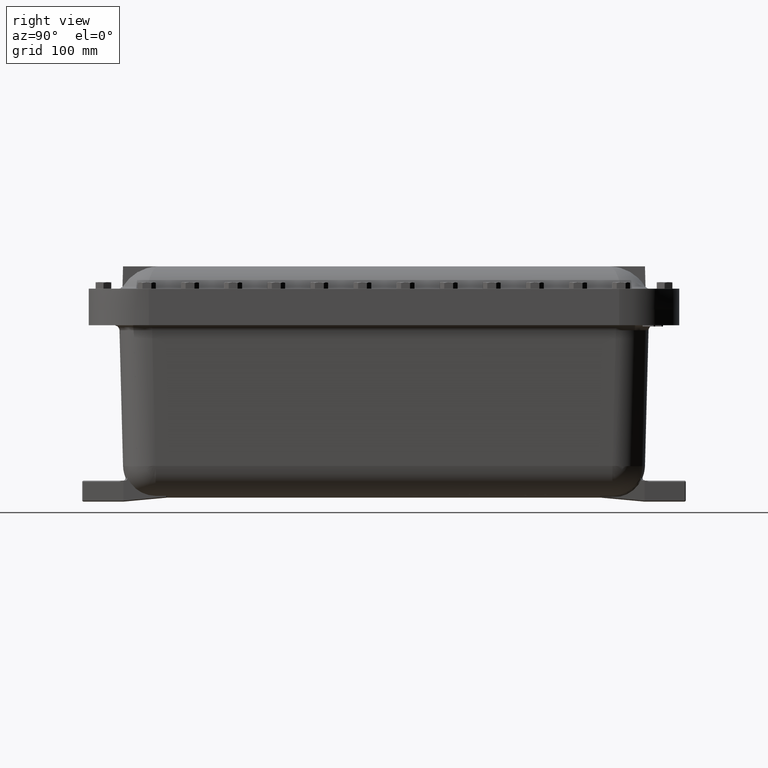
[diagram: clean part render]
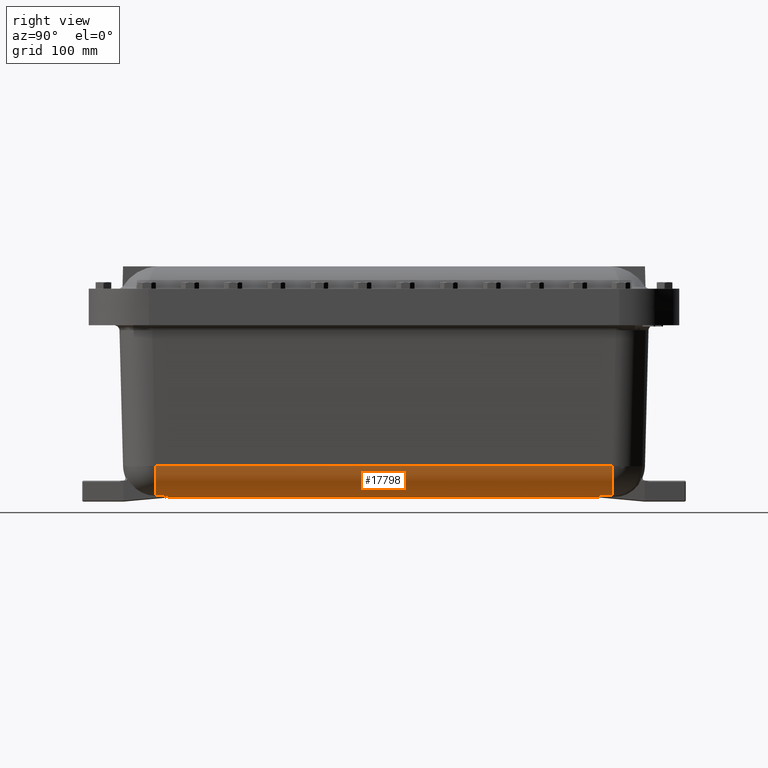
[diagram: same view with one face highlighted and labeled with its STEP entity id]
A machine part, right view. The second image highlights one B-rep face of the part: STEP entity #17798.
In plain terms, the highlighted cylindrical surface (edge-blend (fillet) strip) has radius 39.6875 mm, axis along (0, -1, 0).
Its self-contained STEP definition (entity closure, byte-faithful):
#203 = CARTESIAN_POINT ( 'NONE',  ( 10.29001692197456200, -5.361650166394818800, -8.937248816488160900 ) ) ;
#300 = CARTESIAN_POINT ( 'NONE',  ( 10.41091630549594900, -5.504103657496034300, -8.887988627914422700 ) ) ;
#924 = VECTOR ( 'NONE', #26434, 39.37007874015748100 ) ;
#1031 = CARTESIAN_POINT ( 'NONE',  ( -10.37709533229159600, -5.272931236109166700, -8.960758842838998800 ) ) ;
#1239 = DIRECTION ( 'NONE',  ( 0.0000000000000000000, 0.0000000000000000000, -1.000000000000000000 ) ) ;
#1304 = EDGE_CURVE ( 'NONE', #29025, #19054, #24633, .T. ) ;
#1338 = CARTESIAN_POINT ( 'NONE',  ( 10.36085580598931200, -5.101424483965397300, -8.990189405221141100 ) ) ;
#1356 = EDGE_CURVE ( 'NONE', #5006, #25724, #1631, .T. ) ;
#1624 = CARTESIAN_POINT ( 'NONE',  ( -10.40543167597383000, -5.429284719356038700, -8.915761112947960100 ) ) ;
#1631 = B_SPLINE_CURVE_WITH_KNOTS ( 'NONE', 3,
 ( #26054, #3476, #12466, #12552, #28309, #14817, #1338, #17093, #3568, #19325, #5834, #21603 ),
 .UNSPECIFIED., .F., .F.,
 ( 4, 2, 2, 2, 2, 4 ),
 ( 0.0000000000000000000, 0.001385781347999420700, 0.002771562695998841400, 0.005543125391997559700, 0.008314688087996277600, 0.01108625078399499600 ),
 .UNSPECIFIED. ) ;
#2492 = CARTESIAN_POINT ( 'NONE',  ( 10.29114362243611700, -5.392064922967612100, -8.928016527318938200 ) ) ;
#2586 = CARTESIAN_POINT ( 'NONE',  ( 10.43201303448690200, -5.505822155975402600, -8.887296949790451700 ) ) ;
#3013 = EDGE_CURVE ( 'NONE', #5006, #6031, #16939, .T. ) ;
#3240 = AXIS2_PLACEMENT_3D ( 'NONE', #28216, #14711, #1239 ) ;
#3241 = ORIENTED_EDGE ( 'NONE', *, *, #1304, .F. ) ;
#3283 = CARTESIAN_POINT ( 'NONE',  ( -10.38748216998110700, -5.168863537305435700, -8.980960517647792700 ) ) ;
#3476 = CARTESIAN_POINT ( 'NONE',  ( 10.39272711507939600, -4.941455234863738600, -8.999999999999998200 ) ) ;
#3568 = CARTESIAN_POINT ( 'NONE',  ( 10.33107051540961800, -5.204838867395361400, -8.974797771622874600 ) ) ;
#3722 = AXIS2_PLACEMENT_3D ( 'NONE', #5047, #20798, #7310 ) ;
#3866 = CARTESIAN_POINT ( 'NONE',  ( -10.38713530460376300, -5.412889677351109300, -8.921281892654109300 ) ) ;
#4724 = CARTESIAN_POINT ( 'NONE',  ( 10.29956450203506300, -5.421196163373300800, -8.918531867072228900 ) ) ;
#5006 = VERTEX_POINT ( 'NONE', #7647 ) ;
#5047 = CARTESIAN_POINT ( 'NONE',  ( -10.37500000000000000, -4.923160114669893300, -7.437499999999999100 ) ) ;
#5069 = DIRECTION ( 'NONE',  ( 0.0000000000000000000, 0.0000000000000000000, 1.000000000000000000 ) ) ;
#5134 = ORIENTED_EDGE ( 'NONE', *, *, #5344, .F. ) ;
#5145 = CARTESIAN_POINT ( 'NONE',  ( 10.43201303448690200, -5.505822155975402600, -8.887296949790451700 ) ) ;
#5344 = EDGE_CURVE ( 'NONE', #18502, #11908, #5858, .T. ) ;
#5536 = CARTESIAN_POINT ( 'NONE',  ( -10.40119199810038900, -5.064353296851564300, -8.994004928439912000 ) ) ;
#5635 = VECTOR ( 'NONE', #28959, 39.37007874015748100 ) ;
#5834 = CARTESIAN_POINT ( 'NONE',  ( 10.30239882575324700, -5.307410292922853000, -8.952429747976703200 ) ) ;
#5858 = LINE ( 'NONE', #24563, #29144 ) ;
#5930 = CARTESIAN_POINT ( 'NONE',  ( -10.43750000000000200, -5.437499999999905000, -8.912918832860253100 ) ) ;
#6031 = VERTEX_POINT ( 'NONE', #20969 ) ;
#6134 = CARTESIAN_POINT ( 'NONE',  ( -10.37809236375734500, -5.394825134729231300, -8.927115232426961800 ) ) ;
#6778 = CIRCLE ( 'NONE', #3722, 1.562499999999999600 ) ;
#6794 = CIRCLE ( 'NONE', #7013, 1.562499999999999600 ) ;
#6805 = CARTESIAN_POINT ( 'NONE',  ( -10.92316011466990000, -4.923160114669893300, -7.437499999999999100 ) ) ;
#6898 = CARTESIAN_POINT ( 'NONE',  ( 10.29381355921939800, -5.341530378864350200, -8.942947631781942500 ) ) ;
#6999 = CARTESIAN_POINT ( 'NONE',  ( 10.31459263110840800, -5.447383169046125000, -8.909459371604871300 ) ) ;
#7013 = AXIS2_PLACEMENT_3D ( 'NONE', #6805, #22575, #9078 ) ;
#7255 = EDGE_LOOP ( 'NONE', ( #14554, #19538, #26141, #13093, #3241, #24476, #19580, #5134, #12972, #19357, #27814 ) ) ;
#7310 = DIRECTION ( 'NONE',  ( 0.0000000000000000000, 1.139945530796224000E-013, 1.000000000000000000 ) ) ;
#7359 = CARTESIAN_POINT ( 'NONE',  ( 10.92316011466989400, -5.514771408683298400, -8.883668153015333900 ) ) ;
#7647 = CARTESIAN_POINT ( 'NONE',  ( 10.39272711507939700, -4.923160114669893300, -9.000000000000000000 ) ) ;
#7833 = CARTESIAN_POINT ( 'NONE',  ( -10.41203257096389500, -4.958876770218859400, -9.000000000000000000 ) ) ;
#8066 = B_SPLINE_CURVE_WITH_KNOTS ( 'NONE', 3,
 ( #18350, #20611, #11681, #27425 ),
 .UNSPECIFIED., .F., .F.,
 ( 4, 4 ),
 ( 0.0000000000000000000, 0.01247783751188180600 ),
 .UNSPECIFIED. ) ;
#8409 = CARTESIAN_POINT ( 'NONE',  ( -10.37538944145991900, -5.383041114422948900, -8.930795937044161200 ) ) ;
#9078 = DIRECTION ( 'NONE',  ( 0.0000000000000000000, 0.0000000000000000000, -1.000000000000000000 ) ) ;
#9265 = CARTESIAN_POINT ( 'NONE',  ( 10.33566325492795100, -5.469893921891066500, -8.901238963617334600 ) ) ;
#10067 = CARTESIAN_POINT ( 'NONE',  ( -10.92316011466990000, -6.485124684944201700, -7.478401481731051300 ) ) ;
#10602 = CARTESIAN_POINT ( 'NONE',  ( -10.42911097188061800, -5.437074340593825100, -8.913067413773429600 ) ) ;
#10688 = CARTESIAN_POINT ( 'NONE',  ( -12.68750000000000400, -6.485124684944201700, -7.478401481731049600 ) ) ;
#10695 = CARTESIAN_POINT ( 'NONE',  ( -10.37500000000000000, -5.374999999999905000, -8.933242948512530600 ) ) ;
#11505 = CARTESIAN_POINT ( 'NONE',  ( -10.37500000000000000, -5.374999999999905000, -8.933242948512530600 ) ) ;
#11532 = CARTESIAN_POINT ( 'NONE',  ( 10.36136526450555600, -5.487410019243856900, -8.894568833730392800 ) ) ;
#11610 = CARTESIAN_POINT ( 'NONE',  ( 10.92316011466989400, -6.485124684944201700, -7.478401481731051300 ) ) ;
#11681 = CARTESIAN_POINT ( 'NONE',  ( 10.75940751706564800, -5.513849086098490600, -8.884045464918351300 ) ) ;
#11773 = DIRECTION ( 'NONE',  ( -1.000000000000000000, 0.0000000000000000000, 0.0000000000000000000 ) ) ;
#11908 = VERTEX_POINT ( 'NONE', #21355 ) ;
#12256 = CARTESIAN_POINT ( 'NONE',  ( -10.37500000000000000, -5.341615099001122900, -8.942924085129618600 ) ) ;
#12466 = CARTESIAN_POINT ( 'NONE',  ( 10.39126772882532500, -4.959586581486756400, -8.999679290442577100 ) ) ;
#12552 = CARTESIAN_POINT ( 'NONE',  ( 10.38623110031781100, -4.995607617682137100, -8.998423567084474300 ) ) ;
#12737 = FACE_OUTER_BOUND ( 'NONE', #7255, .T. ) ;
#12842 = CARTESIAN_POINT ( 'NONE',  ( -10.43326656759217600, -5.437499999999903200, -8.912918832860253100 ) ) ;
#12972 = ORIENTED_EDGE ( 'NONE', *, *, #13978, .T. ) ;
#13093 = ORIENTED_EDGE ( 'NONE', *, *, #13707, .T. ) ;
#13560 = VERTEX_POINT ( 'NONE', #17778 ) ;
#13682 = CARTESIAN_POINT ( 'NONE',  ( 10.29129860691059900, -5.351525454564882300, -8.940169957970383100 ) ) ;
#13707 = EDGE_CURVE ( 'NONE', #15333, #19054, #8066, .T. ) ;
#13781 = CARTESIAN_POINT ( 'NONE',  ( 10.39045607279803600, -5.499400143754025200, -8.889863621322694700 ) ) ;
#13953 = AXIS2_PLACEMENT_3D ( 'NONE', #18551, #11773, #5069 ) ;
#13978 = EDGE_CURVE ( 'NONE', #18502, #18950, #28470, .T. ) ;
#14097 = CARTESIAN_POINT ( 'NONE',  ( -10.43750000000000200, -5.437499999999905000, -8.912918832860253100 ) ) ;
#14554 = ORIENTED_EDGE ( 'NONE', *, *, #3013, .F. ) ;
#14711 = DIRECTION ( 'NONE',  ( 1.000000000000000000, 0.0000000000000000000, 0.0000000000000000000 ) ) ;
#14817 = CARTESIAN_POINT ( 'NONE',  ( 10.37064735213919800, -5.066667449893341100, -8.993800915318690400 ) ) ;
#15098 = CARTESIAN_POINT ( 'NONE',  ( -10.41689730142322500, -5.434152500806802300, -8.914082533145645500 ) ) ;
#15333 = VERTEX_POINT ( 'NONE', #5145 ) ;
#15461 = CARTESIAN_POINT ( 'NONE',  ( 0.0000000000000000000, -4.923160114669893300, -9.000000000000000000 ) ) ;
#15972 = CARTESIAN_POINT ( 'NONE',  ( 10.28994029772164400, -5.382085832099869900, -8.931122182448005400 ) ) ;
#16066 = CARTESIAN_POINT ( 'NONE',  ( 10.42135657673396100, -5.505468709061935000, -8.887438997337264700 ) ) ;
#16790 = CARTESIAN_POINT ( 'NONE',  ( -10.38331269559864200, -5.203643398267431900, -8.975026086706314700 ) ) ;
#16939 = LINE ( 'NONE', #15461, #5635 ) ;
#17093 = CARTESIAN_POINT ( 'NONE',  ( 10.34112599485899000, -5.170526163198681000, -8.980689104575830600 ) ) ;
#17220 = EDGE_CURVE ( 'NONE', #18950, #13560, #6778, .T. ) ;
#17374 = CARTESIAN_POINT ( 'NONE',  ( -10.39849353847231800, -5.424504809374587600, -8.917397714919381700 ) ) ;
#17479 = CARTESIAN_POINT ( 'NONE',  ( 10.29381355921939800, -5.341530378864350200, -8.942947631781942500 ) ) ;
#17482 = B_SPLINE_CURVE_WITH_KNOTS ( 'NONE', 3,
 ( #12256, #25765, #1031, #16790, #3283, #19041, #5536, #21299, #7833, #23576 ),
 .UNSPECIFIED., .F., .F.,
 ( 4, 2, 2, 2, 4 ),
 ( 0.0000000000000000000, 0.002703188640501020300, 0.005406377281002040600, 0.008109565921503060500, 0.01081275456200408100 ),
 .UNSPECIFIED. ) ;
#17778 = CARTESIAN_POINT ( 'NONE',  ( -10.37500000000000000, -5.341615099001122900, -8.942924085129618600 ) ) ;
#17798 = ADVANCED_FACE ( 'NONE', ( #12737 ), #18023, .T. ) ;
#17864 = DIRECTION ( 'NONE',  ( -1.000000000000000000, 0.0000000000000000000, 0.0000000000000000000 ) ) ;
#18023 = CYLINDRICAL_SURFACE ( 'NONE', #13953, 1.562499999999999600 ) ;
#18211 = CARTESIAN_POINT ( 'NONE',  ( 10.29591804692841400, -5.411572347076468500, -8.921738770781592700 ) ) ;
#18350 = CARTESIAN_POINT ( 'NONE',  ( 10.43201303448690200, -5.505822155975402600, -8.887296949790451700 ) ) ;
#18502 = VERTEX_POINT ( 'NONE', #14097 ) ;
#18551 = CARTESIAN_POINT ( 'NONE',  ( 0.0000000000000000000, -4.923160114669893300, -7.437499999999999100 ) ) ;
#18950 = VERTEX_POINT ( 'NONE', #11505 ) ;
#19041 = CARTESIAN_POINT ( 'NONE',  ( -10.39638569099086900, -5.099241526834745700, -8.990444260983773400 ) ) ;
#19054 = VERTEX_POINT ( 'NONE', #7359 ) ;
#19325 = CARTESIAN_POINT ( 'NONE',  ( 10.31171964869335900, -5.273284318286718200, -8.960667883201097100 ) ) ;
#19357 = ORIENTED_EDGE ( 'NONE', *, *, #17220, .T. ) ;
#19538 = ORIENTED_EDGE ( 'NONE', *, *, #1356, .T. ) ;
#19580 = ORIENTED_EDGE ( 'NONE', *, *, #28349, .T. ) ;
#19604 = CARTESIAN_POINT ( 'NONE',  ( -10.38261894013068200, -5.405960169759185700, -8.923558910040176400 ) ) ;
#20306 = B_SPLINE_CURVE_WITH_KNOTS ( 'NONE', 3,
 ( #6898, #13682, #203, #15972, #2492, #18211, #4724, #20468, #6999, #22745, #9265, #25035, #11532, #27285, #13781, #300, #16066, #2586 ),
 .UNSPECIFIED., .F., .F.,
 ( 4, 2, 2, 2, 2, 2, 2, 2, 4 ),
 ( 0.0000000000000000000, 0.0008079710161710745600, 0.001615942032342149100, 0.002423913048513223600, 0.003231884064684298300, 0.004039855080855372900, 0.004847826097026447200, 0.005655797113197522300, 0.006463768129368596500 ),
 .UNSPECIFIED. ) ;
#20468 = CARTESIAN_POINT ( 'NONE',  ( 10.30890156196678100, -5.439048106790504100, -8.912408429929573800 ) ) ;
#20611 = CARTESIAN_POINT ( 'NONE',  ( 10.59566572775540100, -5.511250089033218600, -8.885115505998619800 ) ) ;
#20798 = DIRECTION ( 'NONE',  ( 1.000000000000000000, -0.0000000000000000000, -0.0000000000000000000 ) ) ;
#20969 = CARTESIAN_POINT ( 'NONE',  ( -10.41203257096389800, -4.923160114669893300, -9.000000000000000000 ) ) ;
#21299 = CARTESIAN_POINT ( 'NONE',  ( -10.40908373717831700, -4.994177708973378300, -8.998781399444595800 ) ) ;
#21355 = CARTESIAN_POINT ( 'NONE',  ( -10.92316011466990000, -5.437499999999905000, -8.912918832860253100 ) ) ;
#21603 = CARTESIAN_POINT ( 'NONE',  ( 10.29381355921939800, -5.341530378864350200, -8.942947631781942500 ) ) ;
#21894 = CARTESIAN_POINT ( 'NONE',  ( -10.37692952501601000, -5.390924778288463900, -8.928345233079639300 ) ) ;
#22067 = VERTEX_POINT ( 'NONE', #10067 ) ;
#22575 = DIRECTION ( 'NONE',  ( 1.000000000000000000, 0.0000000000000000000, 0.0000000000000000000 ) ) ;
#22745 = CARTESIAN_POINT ( 'NONE',  ( 10.32803184621849900, -5.462884869027024400, -8.903846272859549800 ) ) ;
#23474 = EDGE_CURVE ( 'NONE', #13560, #6031, #17482, .T. ) ;
#23576 = CARTESIAN_POINT ( 'NONE',  ( -10.41203257096389800, -4.923160114669893300, -9.000000000000000000 ) ) ;
#23610 = EDGE_CURVE ( 'NONE', #22067, #29025, #24900, .T. ) ;
#24161 = CARTESIAN_POINT ( 'NONE',  ( -10.37500000000000000, -5.379047282917665200, -8.932020329444677400 ) ) ;
#24476 = ORIENTED_EDGE ( 'NONE', *, *, #23610, .F. ) ;
#24563 = CARTESIAN_POINT ( 'NONE',  ( 0.0000000000000000000, -5.437499999999905000, -8.912918832860253100 ) ) ;
#24633 = CIRCLE ( 'NONE', #3240, 1.562499999999999600 ) ;
#24900 = LINE ( 'NONE', #10688, #924 ) ;
#25035 = CARTESIAN_POINT ( 'NONE',  ( 10.35241722697598700, -5.482211468340281600, -8.896578885300384000 ) ) ;
#25724 = VERTEX_POINT ( 'NONE', #17479 ) ;
#25765 = CARTESIAN_POINT ( 'NONE',  ( -10.37500000000000400, -5.307355802535503200, -8.952446965431139600 ) ) ;
#26054 = CARTESIAN_POINT ( 'NONE',  ( 10.39272711507939700, -4.923160114669893300, -9.000000000000000000 ) ) ;
#26141 = ORIENTED_EDGE ( 'NONE', *, *, #26284, .T. ) ;
#26284 = EDGE_CURVE ( 'NONE', #25724, #15333, #20306, .T. ) ;
#26434 = DIRECTION ( 'NONE',  ( 1.000000000000000000, -0.0000000000000000000, -0.0000000000000000000 ) ) ;
#27285 = CARTESIAN_POINT ( 'NONE',  ( 10.38034516606546000, -5.496005847947416500, -8.891210874591610700 ) ) ;
#27425 = CARTESIAN_POINT ( 'NONE',  ( 10.92316011466989400, -5.514771408683298400, -8.883668153015333900 ) ) ;
#27814 = ORIENTED_EDGE ( 'NONE', *, *, #23474, .T. ) ;
#28216 = CARTESIAN_POINT ( 'NONE',  ( 10.92316011466989400, -4.923160114669893300, -7.437499999999999100 ) ) ;
#28309 = CARTESIAN_POINT ( 'NONE',  ( 10.38268960473483700, -5.013536700876004600, -8.997485090870075200 ) ) ;
#28349 = EDGE_CURVE ( 'NONE', #22067, #11908, #6794, .T. ) ;
#28470 = B_SPLINE_CURVE_WITH_KNOTS ( 'NONE', 3,
 ( #5930, #12842, #10602, #28599, #15098, #1624, #17374, #3866, #19604, #6134, #21894, #8409, #24161, #10695 ),
 .UNSPECIFIED., .F., .F.,
 ( 4, 2, 2, 2, 2, 2, 4 ),
 ( 0.0000000000000000000, 0.0003178847957148683900, 0.0006357695914297367900, 0.001271539182859592600, 0.001907308774289448700, 0.002225193570004401600, 0.002543078365719354800 ),
 .UNSPECIFIED. ) ;
#28599 = CARTESIAN_POINT ( 'NONE',  ( -10.42094792421095300, -5.435412153909783900, -8.913645274860021700 ) ) ;
#28959 = DIRECTION ( 'NONE',  ( -1.000000000000000000, 0.0000000000000000000, 0.0000000000000000000 ) ) ;
#29025 = VERTEX_POINT ( 'NONE', #11610 ) ;
#29144 = VECTOR ( 'NONE', #17864, 39.37007874015748100 ) ;